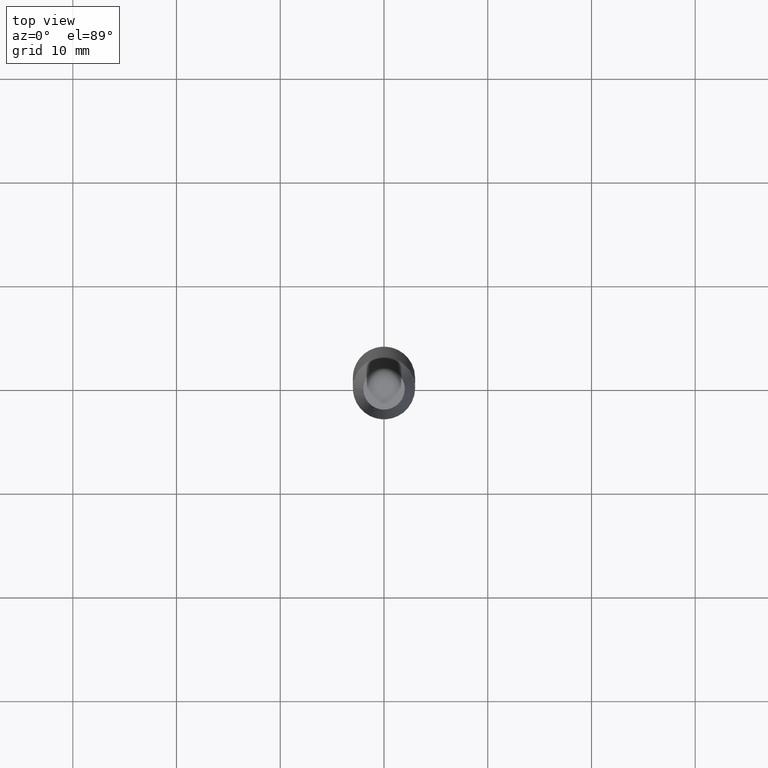
[diagram: clean part render]
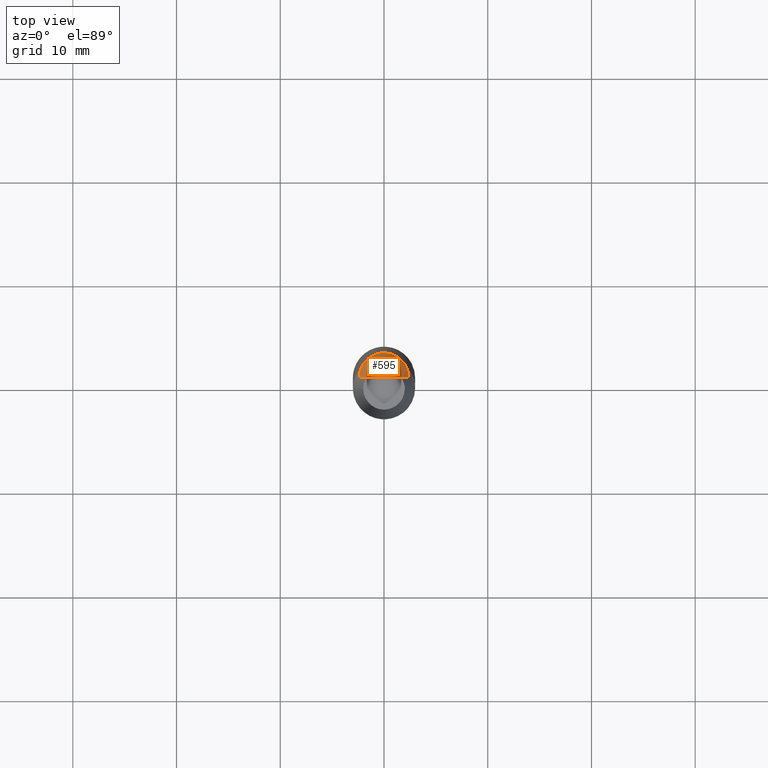
[diagram: same view with one face highlighted and labeled with its STEP entity id]
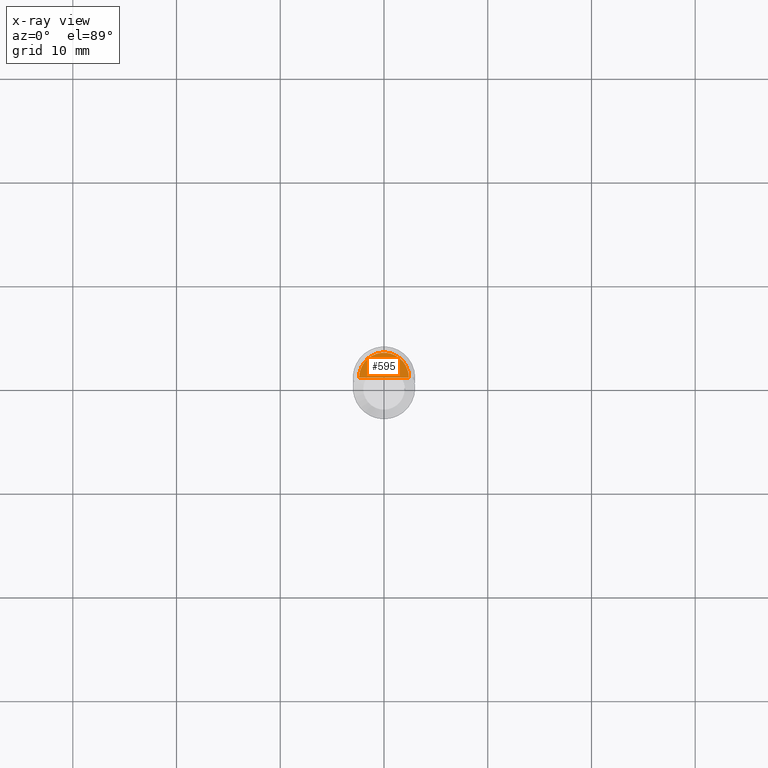
[diagram: x-ray of the same camera — body ghosted, the highlighted face saturated]
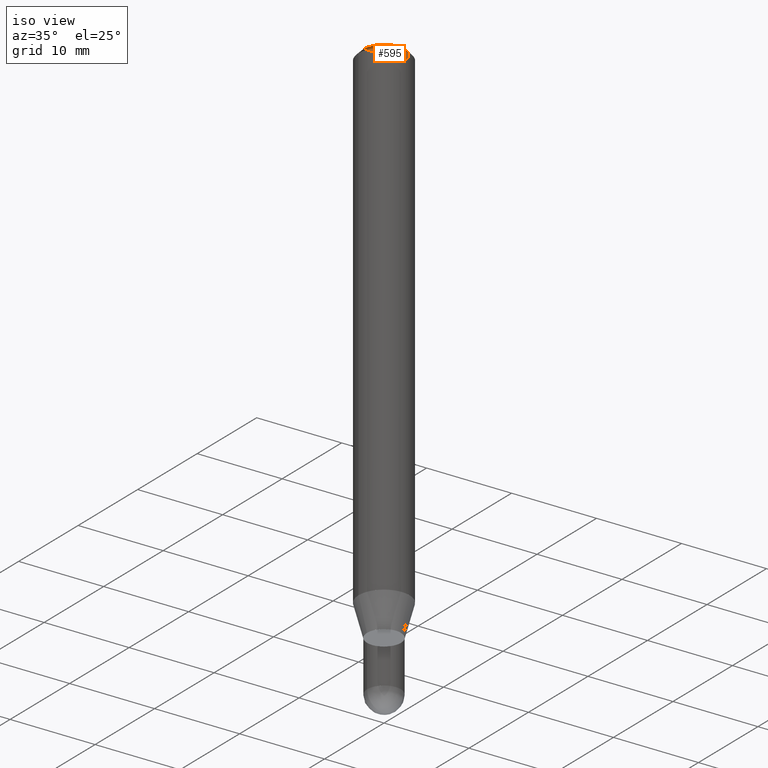
[diagram: same view with one face highlighted and labeled with its STEP entity id]
A machine part, top view. The second image highlights one B-rep face of the part: STEP entity #595.
The next image is the same camera in x-ray: the body ghosted, the highlighted face saturated — about 0% of this face is hidden behind the body in this view.
A second angle (iso view) of the same face is appended — the face is thin or edge-on in the first view.
In plain terms, the highlighted face is a freeform B-spline surface patch.
Its self-contained STEP definition (entity closure, byte-faithful):
#353=CARTESIAN_POINT('',(2.4,0.0,58.267));
#354=CARTESIAN_POINT('',(2.4,2.4,58.267));
#355=CARTESIAN_POINT('',(0.0,2.4,58.267));
#356=CARTESIAN_POINT('',(-2.4,2.4,58.267));
#357=CARTESIAN_POINT('',(-2.4,0.0,58.267));
#358=CARTESIAN_POINT('',(0.0,0.0,58.267));
#580=(
BOUNDED_SURFACE()
B_SPLINE_SURFACE(1,2,(
(#353,#354,#355,#356,#357),
(#358,#358,#358,#358,#358)
), .UNSPECIFIED.,.F.,.F.,.F.)
B_SPLINE_SURFACE_WITH_KNOTS((2,2),(3,2,3),(
0.0,1.0),(
0.0,0.5,1.0), .UNSPECIFIED.)
GEOMETRIC_REPRESENTATION_ITEM()
RATIONAL_B_SPLINE_SURFACE(((1.0,0.707106781187,1.0,0.707106781187,1.0),
(1.0,0.707106781187,1.0,0.707106781187,1.0)
))
REPRESENTATION_ITEM('')
SURFACE()
);
#581=(
BOUNDED_CURVE()
B_SPLINE_CURVE(1,(#358,#353),.UNSPECIFIED.,.F.,.F.)
B_SPLINE_CURVE_WITH_KNOTS((2,2),
(0.0,1.0),.UNSPECIFIED.)
CURVE()
GEOMETRIC_REPRESENTATION_ITEM()
RATIONAL_B_SPLINE_CURVE((1.0,1.0))
REPRESENTATION_ITEM('')
);
#582=(
BOUNDED_CURVE()
B_SPLINE_CURVE(2,(#353,#354,#355,#356,#357),.UNSPECIFIED.,.F.,.F.)
B_SPLINE_CURVE_WITH_KNOTS((3,2,3),
(0.0,0.5,1.0),.UNSPECIFIED.)
CURVE()
GEOMETRIC_REPRESENTATION_ITEM()
RATIONAL_B_SPLINE_CURVE((1.0,0.707106781187,1.0,0.707106781187,1.0))
REPRESENTATION_ITEM('')
);
#583=(
BOUNDED_CURVE()
B_SPLINE_CURVE(1,(#357,#358),.UNSPECIFIED.,.F.,.F.)
B_SPLINE_CURVE_WITH_KNOTS((2,2),
(0.0,1.0),.UNSPECIFIED.)
CURVE()
GEOMETRIC_REPRESENTATION_ITEM()
RATIONAL_B_SPLINE_CURVE((1.0,1.0))
REPRESENTATION_ITEM('')
);
#584=VERTEX_POINT('',#353);
#585=VERTEX_POINT('',#357);
#586=VERTEX_POINT('',#358);
#587=EDGE_CURVE('',#586,#584,#581,.T.);
#588=EDGE_CURVE('',#584,#585,#582,.T.);
#589=EDGE_CURVE('',#585,#586,#583,.T.);
#590=ORIENTED_EDGE('',*,*,#587,.T.);
#591=ORIENTED_EDGE('',*,*,#588,.T.);
#592=ORIENTED_EDGE('',*,*,#589,.T.);
#593=EDGE_LOOP('',(#590,#591,#592));
#594=FACE_OUTER_BOUND('',#593,.T.);
#595=ADVANCED_FACE('',(#594),#580,.T.);